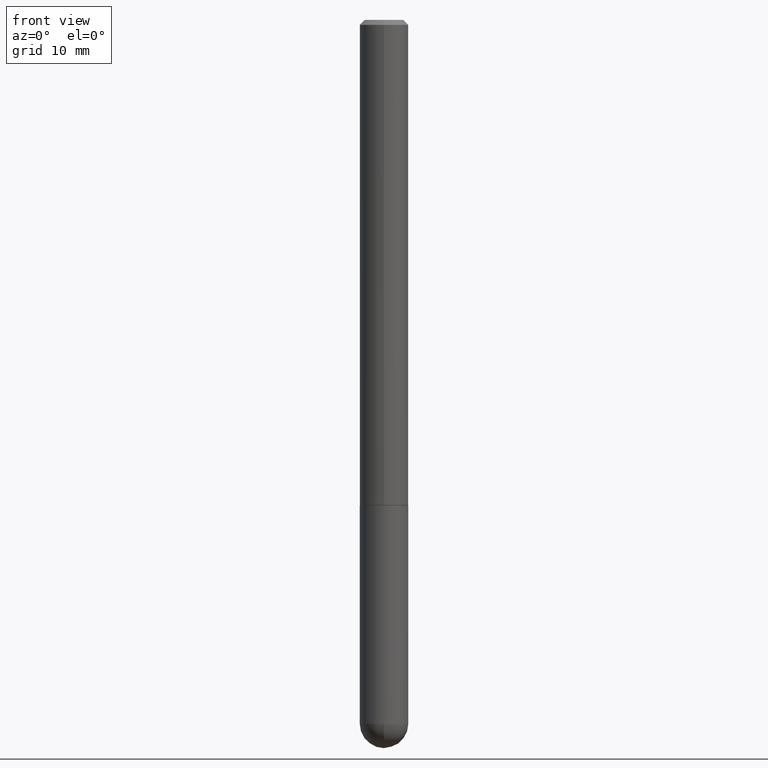
[diagram: clean part render]
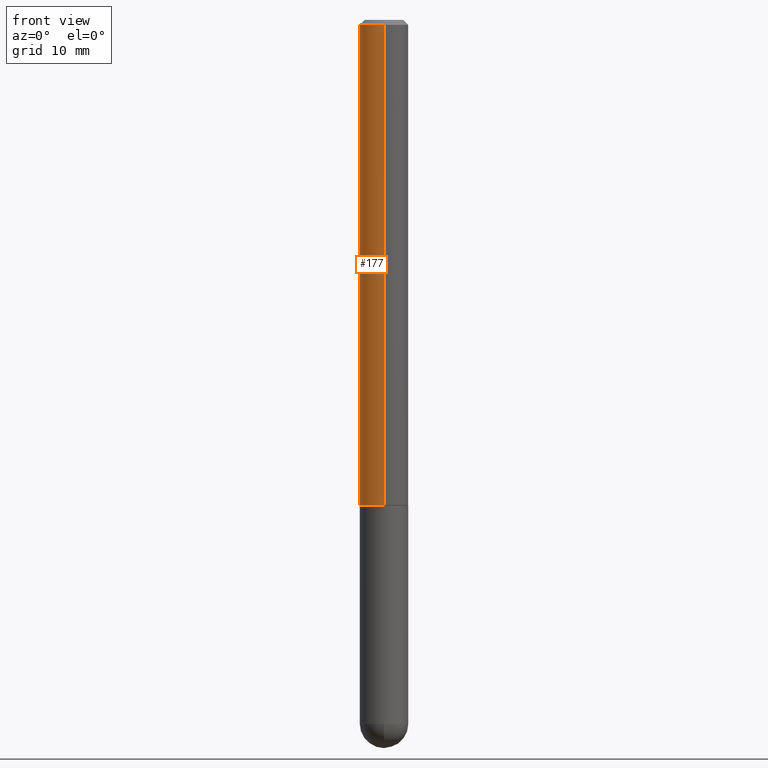
[diagram: same view with one face highlighted and labeled with its STEP entity id]
A machine part, front view. The second image highlights one B-rep face of the part: STEP entity #177.
In plain terms, the highlighted cylindrical surface (edge-blend (fillet) strip) has radius 2.5006 mm, axis along (-0, 0, 1).
Its self-contained STEP definition (entity closure, byte-faithful):
#3 = EDGE_CURVE ( 'NONE', #319, #5, #100, .T. ) ;
#5 = VERTEX_POINT ( 'NONE', #138 ) ;
#20 = DIRECTION ( 'NONE',  ( -6.982962677686265922E-15, -1.000000000000000000, 3.476423852899335483E-15 ) ) ;
#25 = VERTEX_POINT ( 'NONE', #204 ) ;
#26 = DIRECTION ( 'NONE',  ( -2.455983392421677748E-29, 3.476423852899335483E-15, 1.000000000000000000 ) ) ;
#41 = DIRECTION ( 'NONE',  ( -2.455983392421678028E-29, 3.476423852899335089E-15, 1.000000000000000000 ) ) ;
#43 = DIRECTION ( 'NONE',  ( -6.982962677686265133E-15, -1.000000000000000000, 3.468572871589974153E-15 ) ) ;
#52 = CIRCLE ( 'NONE', #109, 0.09844999999999998197 ) ;
#56 = EDGE_CURVE ( 'NONE', #25, #144, #327, .T. ) ;
#59 = VECTOR ( 'NONE', #41, 39.37007874015748143 ) ;
#72 = CARTESIAN_POINT ( 'NONE',  ( 4.911966784843361661E-31, -6.952847705798678460E-17, -0.02000000000000002470 ) ) ;
#76 = CARTESIAN_POINT ( 'NONE',  ( -6.874726756182134475E-16, -0.09845000000000007911, 3.422539283179398691E-16 ) ) ;
#85 = DIRECTION ( 'NONE',  ( -6.982962677686265133E-15, -1.000000000000000000, 2.774858297271973248E-15 ) ) ;
#100 = LINE ( 'NONE', #229, #294 ) ;
#103 = EDGE_LOOP ( 'NONE', ( #326, #105, #226, #218 ) ) ;
#105 = ORIENTED_EDGE ( 'NONE', *, *, #223, .T. ) ;
#109 = AXIS2_PLACEMENT_3D ( 'NONE', #72, #387, #43 ) ;
#138 = CARTESIAN_POINT ( 'NONE',  ( 6.874726756182131517E-16, 0.09844999999999991258, -0.02000000000000036818 ) ) ;
#143 = DIRECTION ( 'NONE',  ( -2.455983392421678028E-29, 3.476423852899335089E-15, 1.000000000000000000 ) ) ;
#144 = VERTEX_POINT ( 'NONE', #242 ) ;
#149 = CARTESIAN_POINT ( 'NONE',  ( 0.000000000000000000, 0.000000000000000000, 0.000000000000000000 ) ) ;
#156 = EDGE_CURVE ( 'NONE', #5, #144, #52, .T. ) ;
#169 = AXIS2_PLACEMENT_3D ( 'NONE', #312, #366, #85 ) ;
#177 = ADVANCED_FACE ( 'NONE', ( #309 ), #369, .T. ) ;
#204 = CARTESIAN_POINT ( 'NONE',  ( -6.874726756181660173E-16, -0.09845000000000704576, -1.967499999999999361 ) ) ;
#218 = ORIENTED_EDGE ( 'NONE', *, *, #156, .F. ) ;
#223 = EDGE_CURVE ( 'NONE', #319, #25, #329, .T. ) ;
#226 = ORIENTED_EDGE ( 'NONE', *, *, #56, .T. ) ;
#229 = CARTESIAN_POINT ( 'NONE',  ( 6.995293233558190965E-16, 0.09845000000000007911, -3.422539283179398691E-16 ) ) ;
#242 = CARTESIAN_POINT ( 'NONE',  ( -6.754160278806065167E-16, -0.09845000000000005136, -0.01999999999999968470 ) ) ;
#294 = VECTOR ( 'NONE', #143, 39.37007874015748143 ) ;
#296 = CARTESIAN_POINT ( 'NONE',  ( 6.995293233558439456E-16, 0.09844999999999334839, -1.967500000000000027 ) ) ;
#309 = FACE_OUTER_BOUND ( 'NONE', #103, .T. ) ;
#312 = CARTESIAN_POINT ( 'NONE',  ( 4.832147324589650168E-29, -6.839863930579441172E-15, -1.967499999999999805 ) ) ;
#319 = VERTEX_POINT ( 'NONE', #296 ) ;
#320 = AXIS2_PLACEMENT_3D ( 'NONE', #149, #26, #20 ) ;
#326 = ORIENTED_EDGE ( 'NONE', *, *, #3, .F. ) ;
#327 = LINE ( 'NONE', #76, #59 ) ;
#329 = CIRCLE ( 'NONE', #169, 0.09845000000000020401 ) ;
#366 = DIRECTION ( 'NONE',  ( -2.455983392421677748E-29, 3.476423852899335483E-15, 1.000000000000000000 ) ) ;
#369 = CYLINDRICAL_SURFACE ( 'NONE', #320, 0.09845000000000007911 ) ;
#387 = DIRECTION ( 'NONE',  ( -2.455983392421677748E-29, 3.476423852899335483E-15, 1.000000000000000000 ) ) ;